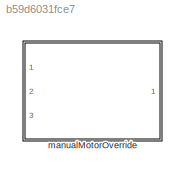
MODEL slx_b59d6031fce7
KIND library
CONFIG AbsTol = auto
CONFIG EnableMultiTasking = off
CONFIG FixedStep = auto
CONFIG MaxStep = auto
CONFIG MinStep = auto
CONFIG RelTol = 1e-3
CONFIG SampleTimeConstraint = Unconstrained
CONFIG Solver = VariableStepAuto
CONFIG SolverName = VariableStepAuto
CONFIG StartTime = 0.0
CONFIG StopTime = 10.0
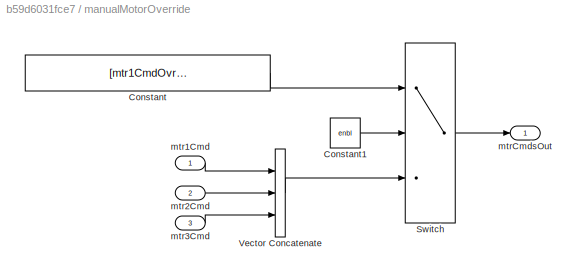
BLOCK [SubSystem] manualMotorOverride
  Ports = [3, 1]
  RequestExecContextInheritance = off
BLOCK [Constant] manualMotorOverride/Constant
  Value = [mtr1CmdOvrrd mtr2CmdOvrrd mtr3CmdOvrrd]'
BLOCK [Constant] manualMotorOverride/Constant1
  Value = enbl
BLOCK [Switch] manualMotorOverride/Switch
  Criteria = u2 > Threshold
  InputSameDT = off
  SaturateOnIntegerOverflow = off
BLOCK [Concatenate] manualMotorOverride/Vector Concatenate
  NumInputs = 3
  Ports = [3, 1]
BLOCK [Inport] manualMotorOverride/mtr1Cmd
  IconDisplay = Port number
BLOCK [Inport] manualMotorOverride/mtr2Cmd
  IconDisplay = Port number
  Port = 2
BLOCK [Inport] manualMotorOverride/mtr3Cmd
  IconDisplay = Port number
  Port = 3
BLOCK [Outport] manualMotorOverride/mtrCmdsOut
  IconDisplay = Port number
LINE manualMotorOverride/Constant1:1 -> manualMotorOverride/Switch:2
LINE manualMotorOverride/Constant:1 -> manualMotorOverride/Switch:1
LINE manualMotorOverride/Switch:1 -> manualMotorOverride/mtrCmdsOut:1
LINE manualMotorOverride/Vector Concatenate:1 -> manualMotorOverride/Switch:3
LINE manualMotorOverride/mtr1Cmd:1 -> manualMotorOverride/Vector Concatenate:1
LINE manualMotorOverride/mtr2Cmd:1 -> manualMotorOverride/Vector Concatenate:2
LINE manualMotorOverride/mtr3Cmd:1 -> manualMotorOverride/Vector Concatenate:3
